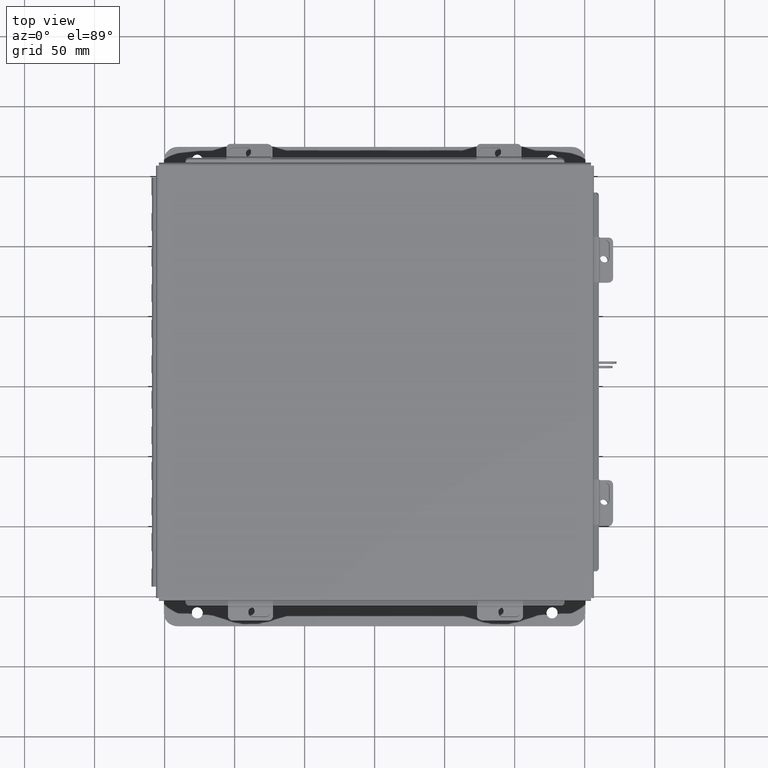
[diagram: clean part render]
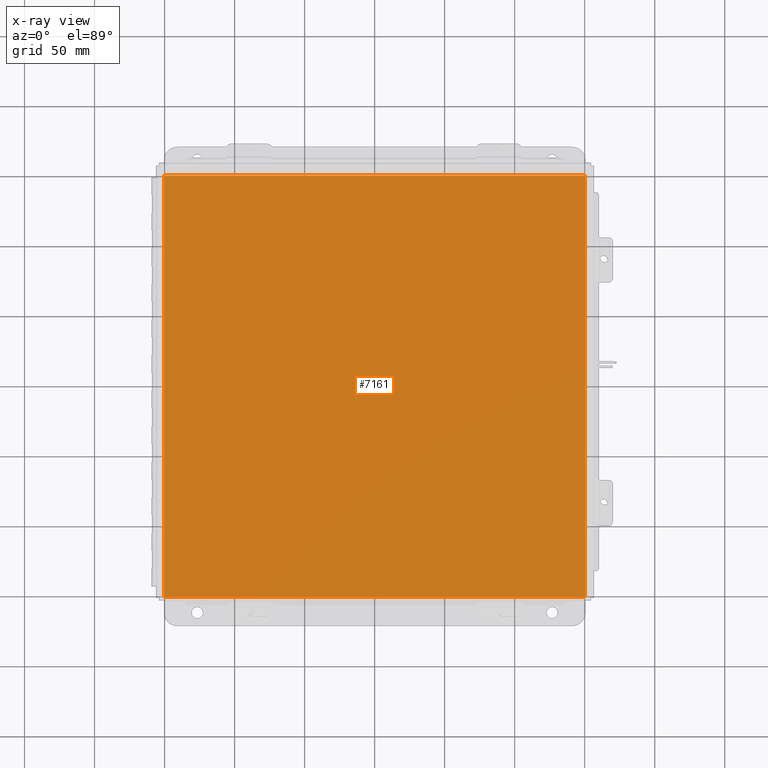
[diagram: x-ray — body ghosted, one internal face saturated and labeled with its STEP entity id]
A machine part, top view, then the same camera in x-ray: the body is ghosted and one INTERNAL B-rep face — a face not visible from any outside direction — is saturated and labeled: STEP entity #7161.
In plain terms, the highlighted planar face has unit normal (0, 0, -1).
Its self-contained STEP definition (entity closure, byte-faithful):
#27 = AXIS2_PLACEMENT_3D ( 'NONE', #8333, #57, #9716 ) ;
#57 = DIRECTION ( 'NONE',  ( 0.0000000000000000000, 0.0000000000000000000, -1.000000000000000000 ) ) ;
#222 = CARTESIAN_POINT ( 'NONE',  ( 5.912300000000002800, -5.925300000000000000, 4.268512490100411300E-017 ) ) ;
#294 = LINE ( 'NONE', #17491, #14499 ) ;
#430 = DIRECTION ( 'NONE',  ( -1.000000000000000000, -0.0000000000000000000, -0.0000000000000000000 ) ) ;
#619 = VERTEX_POINT ( 'NONE', #222 ) ;
#697 = EDGE_CURVE ( 'NONE', #11871, #619, #294, .T. ) ;
#798 = VECTOR ( 'NONE', #15215, 39.37007874015748100 ) ;
#1272 = EDGE_CURVE ( 'NONE', #2782, #11062, #6788, .T. ) ;
#1993 = CARTESIAN_POINT ( 'NONE',  ( -5.999999999999998200, 5.925300000000000000, 0.0000000000000000000 ) ) ;
#2782 = VERTEX_POINT ( 'NONE', #4590 ) ;
#3142 = CARTESIAN_POINT ( 'NONE',  ( -5.912299999999998300, 5.925300000000000000, 4.268512490100411300E-017 ) ) ;
#4590 = CARTESIAN_POINT ( 'NONE',  ( 5.912300000000002800, 5.925299999999997300, 4.268512490100411300E-017 ) ) ;
#4948 = LINE ( 'NONE', #8384, #798 ) ;
#5537 = PLANE ( 'NONE',  #27 ) ;
#6788 = LINE ( 'NONE', #1993, #13611 ) ;
#7161 = ADVANCED_FACE ( 'NONE', ( #9122 ), #5537, .F. ) ;
#7323 = CARTESIAN_POINT ( 'NONE',  ( -5.912299999999998300, -5.925300000000000000, 4.268512490100411300E-017 ) ) ;
#7856 = CARTESIAN_POINT ( 'NONE',  ( -5.912299999999998300, -5.925299999999999100, 4.268512490100411300E-017 ) ) ;
#8333 = CARTESIAN_POINT ( 'NONE',  ( 0.0000000000000000000, 0.0000000000000000000, 0.0000000000000000000 ) ) ;
#8384 = CARTESIAN_POINT ( 'NONE',  ( 5.912300000000002800, 5.925300000000000000, 4.268512490100411300E-017 ) ) ;
#8584 = LINE ( 'NONE', #7323, #15452 ) ;
#8686 = DIRECTION ( 'NONE',  ( -0.0000000000000000000, 1.000000000000000000, -0.0000000000000000000 ) ) ;
#9091 = ORIENTED_EDGE ( 'NONE', *, *, #10355, .F. ) ;
#9122 = FACE_OUTER_BOUND ( 'NONE', #16657, .T. ) ;
#9559 = ORIENTED_EDGE ( 'NONE', *, *, #697, .T. ) ;
#9716 = DIRECTION ( 'NONE',  ( -1.000000000000000000, 0.0000000000000000000, -0.0000000000000000000 ) ) ;
#10355 = EDGE_CURVE ( 'NONE', #11871, #11062, #8584, .T. ) ;
#10942 = EDGE_CURVE ( 'NONE', #2782, #619, #4948, .T. ) ;
#11062 = VERTEX_POINT ( 'NONE', #3142 ) ;
#11623 = ORIENTED_EDGE ( 'NONE', *, *, #10942, .F. ) ;
#11871 = VERTEX_POINT ( 'NONE', #7856 ) ;
#12091 = ORIENTED_EDGE ( 'NONE', *, *, #1272, .T. ) ;
#13611 = VECTOR ( 'NONE', #430, 39.37007874015748100 ) ;
#14499 = VECTOR ( 'NONE', #16720, 39.37007874015748100 ) ;
#15215 = DIRECTION ( 'NONE',  ( -0.0000000000000000000, -1.000000000000000000, -0.0000000000000000000 ) ) ;
#15452 = VECTOR ( 'NONE', #8686, 39.37007874015748100 ) ;
#16657 = EDGE_LOOP ( 'NONE', ( #11623, #12091, #9091, #9559 ) ) ;
#16720 = DIRECTION ( 'NONE',  ( 1.000000000000000000, 0.0000000000000000000, 0.0000000000000000000 ) ) ;
#17491 = CARTESIAN_POINT ( 'NONE',  ( -5.999999999999998200, -5.925300000000000000, 0.0000000000000000000 ) ) ;